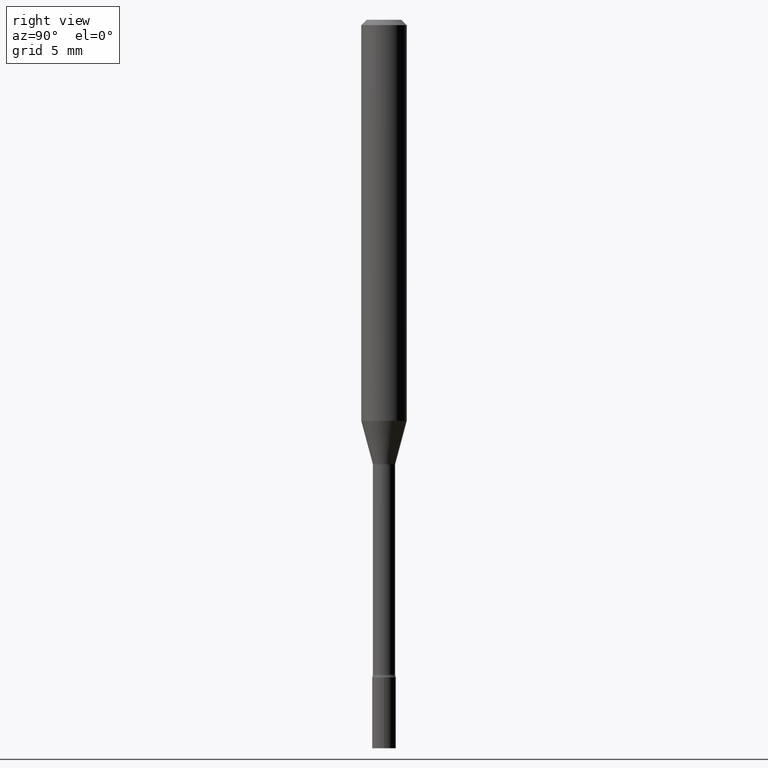
[diagram: clean part render]
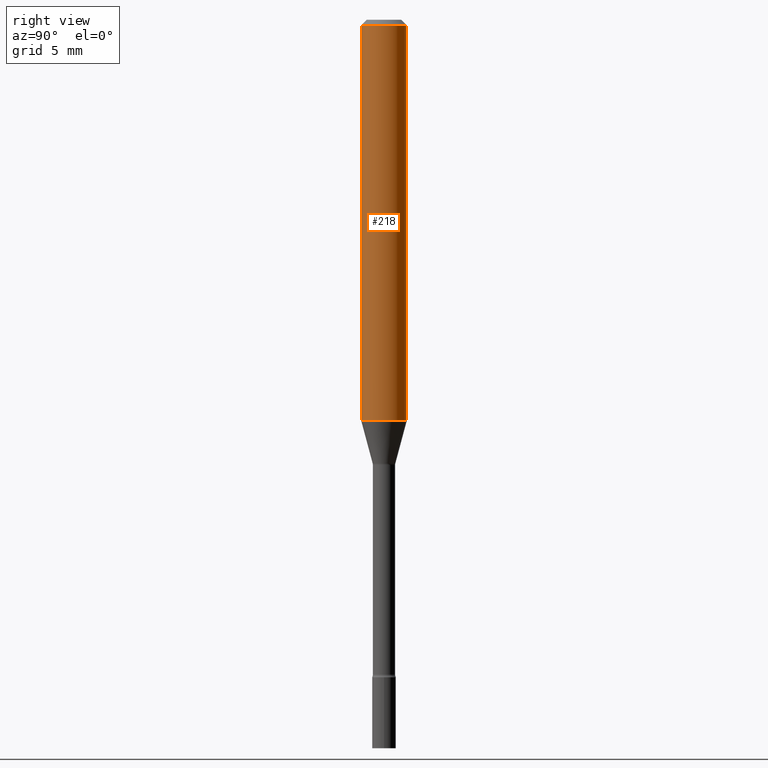
[diagram: same view with one face highlighted and labeled with its STEP entity id]
A machine part, right view. The second image highlights one B-rep face of the part: STEP entity #218.
In plain terms, the highlighted cylindrical surface (edge-blend (fillet) strip) has radius 1.5875 mm, axis along (-0, 0, 1).
Its self-contained STEP definition (entity closure, byte-faithful):
#9 = EDGE_CURVE ( 'NONE', #234, #75, #428, .T. ) ;
#19 = DIRECTION ( 'NONE',  ( -2.445434039779886837E-29, 3.491531126314244194E-15, 1.000000000000000000 ) ) ;
#30 = VECTOR ( 'NONE', #103, 39.37007874015748143 ) ;
#54 = CARTESIAN_POINT ( 'NONE',  ( 3.668151059669837174E-31, -5.237296689471377261E-17, -0.01500000000000003067 ) ) ;
#75 = VERTEX_POINT ( 'NONE', #155 ) ;
#85 = ORIENTED_EDGE ( 'NONE', *, *, #9, .T. ) ;
#103 = DIRECTION ( 'NONE',  ( -2.445434039779886837E-29, 3.491531126314244194E-15, 1.000000000000000000 ) ) ;
#109 = LINE ( 'NONE', #392, #254 ) ;
#122 = DIRECTION ( 'NONE',  ( -2.445434039779886837E-29, 3.491531126314244194E-15, 1.000000000000000000 ) ) ;
#138 = EDGE_CURVE ( 'NONE', #438, #234, #499, .T. ) ;
#148 = ORIENTED_EDGE ( 'NONE', *, *, #223, .F. ) ;
#154 = DIRECTION ( 'NONE',  ( -2.445434039779886837E-29, 3.491531126314244194E-15, 1.000000000000000000 ) ) ;
#155 = CARTESIAN_POINT ( 'NONE',  ( 4.440892098500897333E-16, 0.06249999999999995837, -0.01500000000000024751 ) ) ;
#158 = CIRCLE ( 'NONE', #365, 0.06250000000000000000 ) ;
#186 = CARTESIAN_POINT ( 'NONE',  ( -4.364351673553647002E-16, -0.06250000000000384415, -1.100760976698174298 ) ) ;
#195 = DIRECTION ( 'NONE',  ( -6.982962677686265922E-15, -1.000000000000000000, 3.491531126314243799E-15 ) ) ;
#216 = EDGE_LOOP ( 'NONE', ( #426, #85, #444, #148 ) ) ;
#218 = ADVANCED_FACE ( 'NONE', ( #517 ), #400, .T. ) ;
#223 = EDGE_CURVE ( 'NONE', #438, #461, #109, .T. ) ;
#234 = VERTEX_POINT ( 'NONE', #476 ) ;
#243 = CARTESIAN_POINT ( 'NONE',  ( 2.691838362079070792E-29, -3.843341212773745017E-15, -1.100760976698174520 ) ) ;
#254 = VECTOR ( 'NONE', #122, 39.37007874015748143 ) ;
#266 = DIRECTION ( 'NONE',  ( -6.982962677686265922E-15, -1.000000000000000000, 3.483106191921935554E-15 ) ) ;
#283 = DIRECTION ( 'NONE',  ( -6.982962677686265922E-15, -1.000000000000000000, 4.370956789862821150E-15 ) ) ;
#314 = CARTESIAN_POINT ( 'NONE',  ( -4.364351673553912750E-16, -0.06250000000000005551, -0.01499999999999981209 ) ) ;
#365 = AXIS2_PLACEMENT_3D ( 'NONE', #54, #19, #266 ) ;
#388 = CARTESIAN_POINT ( 'NONE',  ( 0.000000000000000000, 0.000000000000000000, 0.000000000000000000 ) ) ;
#389 = CARTESIAN_POINT ( 'NONE',  ( 4.440892098500625669E-16, 0.06250000000000000000, -2.182206953946402375E-16 ) ) ;
#392 = CARTESIAN_POINT ( 'NONE',  ( -4.364351673553916201E-16, -0.06250000000000000000, 2.182206953946402375E-16 ) ) ;
#395 = EDGE_CURVE ( 'NONE', #461, #75, #158, .T. ) ;
#400 = CYLINDRICAL_SURFACE ( 'NONE', #419, 0.06250000000000000000 ) ;
#404 = AXIS2_PLACEMENT_3D ( 'NONE', #243, #406, #283 ) ;
#406 = DIRECTION ( 'NONE',  ( -2.445434039779886837E-29, 3.491531126314244194E-15, 1.000000000000000000 ) ) ;
#419 = AXIS2_PLACEMENT_3D ( 'NONE', #388, #154, #195 ) ;
#426 = ORIENTED_EDGE ( 'NONE', *, *, #138, .T. ) ;
#428 = LINE ( 'NONE', #389, #30 ) ;
#438 = VERTEX_POINT ( 'NONE', #186 ) ;
#444 = ORIENTED_EDGE ( 'NONE', *, *, #395, .F. ) ;
#461 = VERTEX_POINT ( 'NONE', #314 ) ;
#476 = CARTESIAN_POINT ( 'NONE',  ( 4.440892098500895360E-16, 0.06249999999999617667, -1.100760976698174742 ) ) ;
#499 = CIRCLE ( 'NONE', #404, 0.06250000000000000000 ) ;
#517 = FACE_OUTER_BOUND ( 'NONE', #216, .T. ) ;